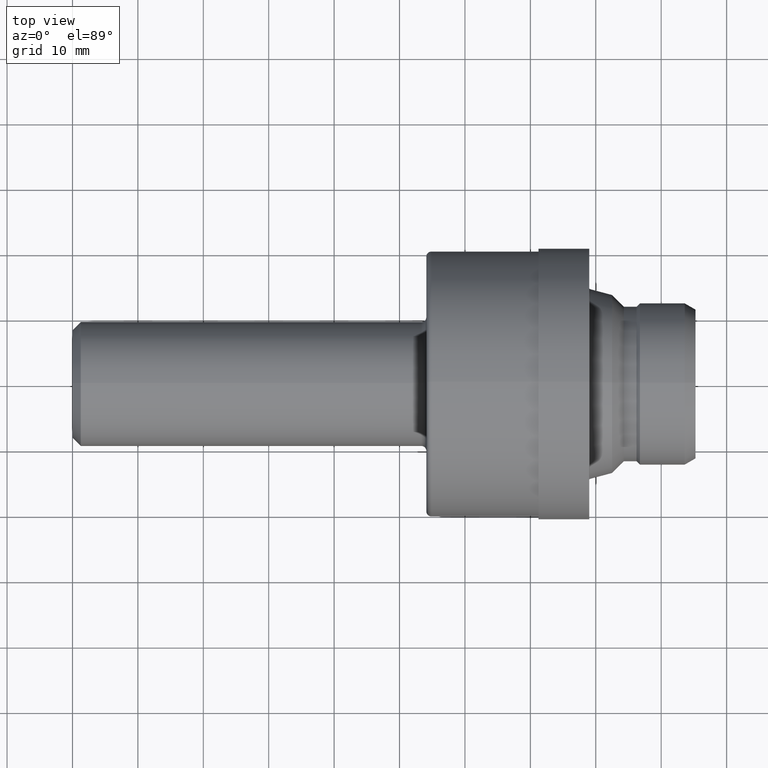
[diagram: clean part render]
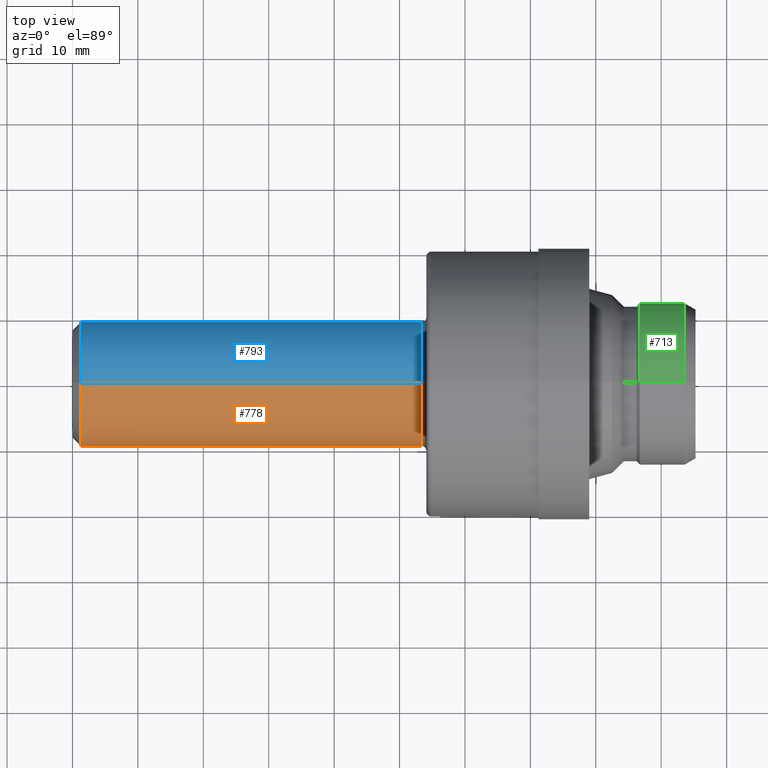
[diagram: same view with three faces highlighted in distinct colors, each labeled with its STEP entity id]
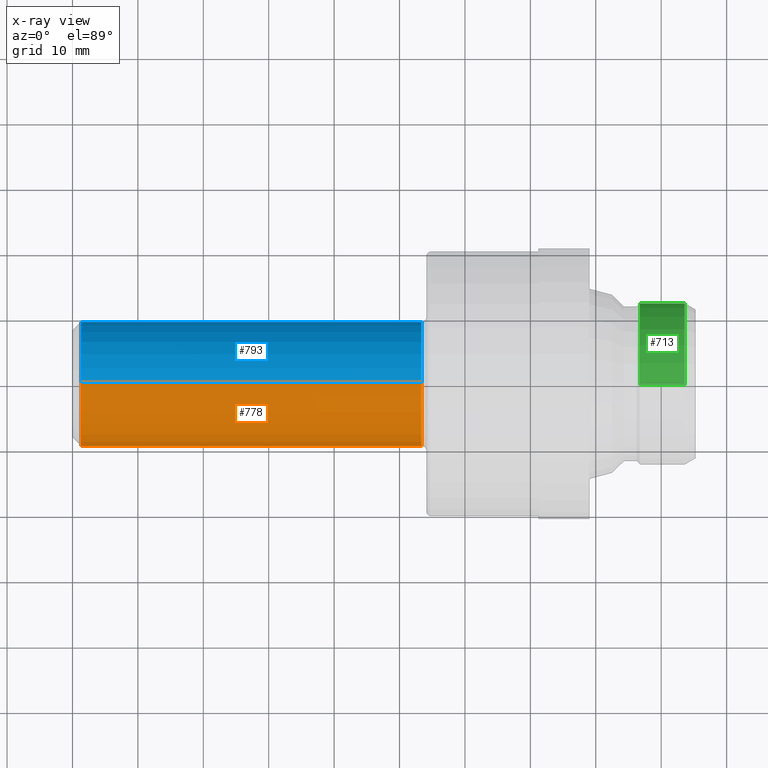
[diagram: x-ray of the same camera — body ghosted, the three highlighted faces saturated]
A machine part, top view with three faces highlighted in distinct colors.
The next image is the same camera in x-ray (body ghosted, the three faces saturated) — at least one of them is partly hidden behind the body in this view.
Their STEP definitions:

[orange] entity #778 — the highlighted cylindrical surface (partial cylindrical patch) has radius 9.525 mm, axis along (-1, -0, -0).
#13 = CARTESIAN_POINT ( 'NONE',  ( 0.05000000000000000278, 4.592425496802575451E-17, -0.3750000000000000555 ) ) ;
#20 = ORIENTED_EDGE ( 'NONE', *, *, #186, .T. ) ;
#24 = EDGE_CURVE ( 'NONE', #101, #27, #511, .T. ) ;
#27 = VERTEX_POINT ( 'NONE', #108 ) ;
#37 = CARTESIAN_POINT ( 'NONE',  ( 2.100000000000000089, 4.776122516674677409E-17, -0.3750000000000000555 ) ) ;
#42 = VERTEX_POINT ( 'NONE', #304 ) ;
#52 = CARTESIAN_POINT ( 'NONE',  ( 0.0000000000000000000, 0.0000000000000000000, 0.3750000000000000555 ) ) ;
#82 = FACE_OUTER_BOUND ( 'NONE', #236, .T. ) ;
#101 = VERTEX_POINT ( 'NONE', #37 ) ;
#108 = CARTESIAN_POINT ( 'NONE',  ( 2.100000000000000089, 0.0000000000000000000, 0.3750000000000000555 ) ) ;
#135 = CARTESIAN_POINT ( 'NONE',  ( 0.05000000000000000278, 0.0000000000000000000, 0.0000000000000000000 ) ) ;
#140 = CARTESIAN_POINT ( 'NONE',  ( 0.0000000000000000000, 0.0000000000000000000, 0.0000000000000000000 ) ) ;
#186 = EDGE_CURVE ( 'NONE', #27, #42, #764, .T. ) ;
#236 = EDGE_LOOP ( 'NONE', ( #792, #568, #20, #770 ) ) ;
#237 = VECTOR ( 'NONE', #443, 39.37007874015748143 ) ;
#245 = VECTOR ( 'NONE', #450, 39.37007874015748143 ) ;
#251 = CIRCLE ( 'NONE', #429, 0.3750000000000000555 ) ;
#256 = DIRECTION ( 'NONE',  ( -1.000000000000000000, -0.0000000000000000000, -0.0000000000000000000 ) ) ;
#271 = DIRECTION ( 'NONE',  ( 0.0000000000000000000, 0.0000000000000000000, 1.000000000000000000 ) ) ;
#304 = CARTESIAN_POINT ( 'NONE',  ( 0.05000000000000000278, 0.0000000000000000000, 0.3750000000000000555 ) ) ;
#326 = CYLINDRICAL_SURFACE ( 'NONE', #397, 0.3750000000000000555 ) ;
#336 = DIRECTION ( 'NONE',  ( 0.0000000000000000000, 0.0000000000000000000, 1.000000000000000000 ) ) ;
#367 = DIRECTION ( 'NONE',  ( -1.000000000000000000, -0.0000000000000000000, -0.0000000000000000000 ) ) ;
#370 = CARTESIAN_POINT ( 'NONE',  ( 0.0000000000000000000, 4.592425496802575451E-17, -0.3750000000000000555 ) ) ;
#397 = AXIS2_PLACEMENT_3D ( 'NONE', #140, #411, #271 ) ;
#411 = DIRECTION ( 'NONE',  ( -1.000000000000000000, -0.0000000000000000000, -0.0000000000000000000 ) ) ;
#429 = AXIS2_PLACEMENT_3D ( 'NONE', #135, #256, #336 ) ;
#443 = DIRECTION ( 'NONE',  ( -1.000000000000000000, -0.0000000000000000000, -0.0000000000000000000 ) ) ;
#450 = DIRECTION ( 'NONE',  ( -1.000000000000000000, -0.0000000000000000000, -0.0000000000000000000 ) ) ;
#508 = AXIS2_PLACEMENT_3D ( 'NONE', #745, #367, #823 ) ;
#511 = CIRCLE ( 'NONE', #508, 0.3750000000000000555 ) ;
#568 = ORIENTED_EDGE ( 'NONE', *, *, #24, .T. ) ;
#581 = EDGE_CURVE ( 'NONE', #101, #642, #584, .T. ) ;
#584 = LINE ( 'NONE', #370, #237 ) ;
#642 = VERTEX_POINT ( 'NONE', #13 ) ;
#692 = EDGE_CURVE ( 'NONE', #642, #42, #251, .T. ) ;
#745 = CARTESIAN_POINT ( 'NONE',  ( 2.100000000000000089, 0.0000000000000000000, 0.0000000000000000000 ) ) ;
#764 = LINE ( 'NONE', #52, #245 ) ;
#770 = ORIENTED_EDGE ( 'NONE', *, *, #692, .F. ) ;
#778 = ADVANCED_FACE ( 'NONE', ( #82 ), #326, .T. ) ;
#792 = ORIENTED_EDGE ( 'NONE', *, *, #581, .F. ) ;
#823 = DIRECTION ( 'NONE',  ( 0.0000000000000000000, 0.0000000000000000000, 1.000000000000000000 ) ) ;

[blue] entity #793 — the highlighted cylindrical surface (partial cylindrical patch) has radius 9.525 mm, axis along (-1, -0, -0).
#13 = CARTESIAN_POINT ( 'NONE',  ( 0.05000000000000000278, 4.592425496802575451E-17, -0.3750000000000000555 ) ) ;
#27 = VERTEX_POINT ( 'NONE', #108 ) ;
#37 = CARTESIAN_POINT ( 'NONE',  ( 2.100000000000000089, 4.776122516674677409E-17, -0.3750000000000000555 ) ) ;
#42 = VERTEX_POINT ( 'NONE', #304 ) ;
#52 = CARTESIAN_POINT ( 'NONE',  ( 0.0000000000000000000, 0.0000000000000000000, 0.3750000000000000555 ) ) ;
#95 = DIRECTION ( 'NONE',  ( 0.0000000000000000000, 0.0000000000000000000, 1.000000000000000000 ) ) ;
#101 = VERTEX_POINT ( 'NONE', #37 ) ;
#108 = CARTESIAN_POINT ( 'NONE',  ( 2.100000000000000089, 0.0000000000000000000, 0.3750000000000000555 ) ) ;
#116 = ORIENTED_EDGE ( 'NONE', *, *, #595, .T. ) ;
#130 = ORIENTED_EDGE ( 'NONE', *, *, #581, .T. ) ;
#159 = DIRECTION ( 'NONE',  ( 0.0000000000000000000, 0.0000000000000000000, 1.000000000000000000 ) ) ;
#181 = AXIS2_PLACEMENT_3D ( 'NONE', #685, #215, #159 ) ;
#186 = EDGE_CURVE ( 'NONE', #27, #42, #764, .T. ) ;
#215 = DIRECTION ( 'NONE',  ( -1.000000000000000000, -0.0000000000000000000, -0.0000000000000000000 ) ) ;
#237 = VECTOR ( 'NONE', #443, 39.37007874015748143 ) ;
#245 = VECTOR ( 'NONE', #450, 39.37007874015748143 ) ;
#265 = ORIENTED_EDGE ( 'NONE', *, *, #556, .F. ) ;
#304 = CARTESIAN_POINT ( 'NONE',  ( 0.05000000000000000278, 0.0000000000000000000, 0.3750000000000000555 ) ) ;
#308 = AXIS2_PLACEMENT_3D ( 'NONE', #415, #538, #475 ) ;
#343 = CIRCLE ( 'NONE', #181, 0.3750000000000000555 ) ;
#370 = CARTESIAN_POINT ( 'NONE',  ( 0.0000000000000000000, 4.592425496802575451E-17, -0.3750000000000000555 ) ) ;
#415 = CARTESIAN_POINT ( 'NONE',  ( 0.0000000000000000000, 0.0000000000000000000, 0.0000000000000000000 ) ) ;
#443 = DIRECTION ( 'NONE',  ( -1.000000000000000000, -0.0000000000000000000, -0.0000000000000000000 ) ) ;
#450 = DIRECTION ( 'NONE',  ( -1.000000000000000000, -0.0000000000000000000, -0.0000000000000000000 ) ) ;
#475 = DIRECTION ( 'NONE',  ( 0.0000000000000000000, 0.0000000000000000000, 1.000000000000000000 ) ) ;
#490 = CARTESIAN_POINT ( 'NONE',  ( 0.05000000000000000278, 0.0000000000000000000, 0.0000000000000000000 ) ) ;
#538 = DIRECTION ( 'NONE',  ( -1.000000000000000000, -0.0000000000000000000, -0.0000000000000000000 ) ) ;
#556 = EDGE_CURVE ( 'NONE', #42, #642, #606, .T. ) ;
#581 = EDGE_CURVE ( 'NONE', #101, #642, #584, .T. ) ;
#584 = LINE ( 'NONE', #370, #237 ) ;
#595 = EDGE_CURVE ( 'NONE', #27, #101, #343, .T. ) ;
#600 = EDGE_LOOP ( 'NONE', ( #116, #130, #265, #624 ) ) ;
#606 = CIRCLE ( 'NONE', #763, 0.3750000000000000555 ) ;
#624 = ORIENTED_EDGE ( 'NONE', *, *, #186, .F. ) ;
#639 = CYLINDRICAL_SURFACE ( 'NONE', #308, 0.3750000000000000555 ) ;
#642 = VERTEX_POINT ( 'NONE', #13 ) ;
#685 = CARTESIAN_POINT ( 'NONE',  ( 2.100000000000000089, 0.0000000000000000000, 0.0000000000000000000 ) ) ;
#763 = AXIS2_PLACEMENT_3D ( 'NONE', #490, #826, #95 ) ;
#764 = LINE ( 'NONE', #52, #245 ) ;
#793 = ADVANCED_FACE ( 'NONE', ( #842 ), #639, .T. ) ;
#826 = DIRECTION ( 'NONE',  ( -1.000000000000000000, -0.0000000000000000000, -0.0000000000000000000 ) ) ;
#842 = FACE_OUTER_BOUND ( 'NONE', #600, .T. ) ;

[green] entity #713 — the highlighted cylindrical surface (partial cylindrical patch) has radius 12.3825 mm, axis along (-1, -0, -0).
#11 = DIRECTION ( 'NONE',  ( 0.0000000000000000000, 0.0000000000000000000, 1.000000000000000000 ) ) ;
#15 = EDGE_CURVE ( 'NONE', #123, #381, #38, .T. ) ;
#38 = CIRCLE ( 'NONE', #622, 0.4874999999999999889 ) ;
#70 = CARTESIAN_POINT ( 'NONE',  ( 0.0000000000000000000, 0.0000000000000000000, 0.0000000000000000000 ) ) ;
#99 = CARTESIAN_POINT ( 'NONE',  ( 3.415000000000000036, 5.970153145843346608E-17, -0.4874999999999999889 ) ) ;
#109 = VERTEX_POINT ( 'NONE', #755 ) ;
#117 = LINE ( 'NONE', #812, #808 ) ;
#123 = VERTEX_POINT ( 'NONE', #633 ) ;
#138 = ORIENTED_EDGE ( 'NONE', *, *, #340, .T. ) ;
#170 = EDGE_LOOP ( 'NONE', ( #261, #138, #787, #472 ) ) ;
#171 = CARTESIAN_POINT ( 'NONE',  ( 3.415000000000000036, 0.0000000000000000000, 0.0000000000000000000 ) ) ;
#197 = EDGE_CURVE ( 'NONE', #231, #109, #268, .T. ) ;
#208 = FACE_OUTER_BOUND ( 'NONE', #170, .T. ) ;
#223 = DIRECTION ( 'NONE',  ( 0.0000000000000000000, 0.0000000000000000000, 1.000000000000000000 ) ) ;
#231 = VERTEX_POINT ( 'NONE', #524 ) ;
#261 = ORIENTED_EDGE ( 'NONE', *, *, #197, .T. ) ;
#268 = CIRCLE ( 'NONE', #687, 0.4874999999999999889 ) ;
#299 = DIRECTION ( 'NONE',  ( -1.000000000000000000, -0.0000000000000000000, -0.0000000000000000000 ) ) ;
#340 = EDGE_CURVE ( 'NONE', #109, #381, #522, .T. ) ;
#345 = VECTOR ( 'NONE', #299, 39.37007874015748143 ) ;
#374 = CYLINDRICAL_SURFACE ( 'NONE', #784, 0.4874999999999999889 ) ;
#381 = VERTEX_POINT ( 'NONE', #99 ) ;
#393 = DIRECTION ( 'NONE',  ( -1.000000000000000000, -0.0000000000000000000, -0.0000000000000000000 ) ) ;
#472 = ORIENTED_EDGE ( 'NONE', *, *, #545, .F. ) ;
#522 = LINE ( 'NONE', #744, #345 ) ;
#524 = CARTESIAN_POINT ( 'NONE',  ( 3.685000000000000053, 0.0000000000000000000, 0.4874999999999999889 ) ) ;
#545 = EDGE_CURVE ( 'NONE', #231, #123, #117, .T. ) ;
#562 = DIRECTION ( 'NONE',  ( -1.000000000000000000, -0.0000000000000000000, -0.0000000000000000000 ) ) ;
#615 = DIRECTION ( 'NONE',  ( -1.000000000000000000, -0.0000000000000000000, -0.0000000000000000000 ) ) ;
#622 = AXIS2_PLACEMENT_3D ( 'NONE', #171, #615, #223 ) ;
#633 = CARTESIAN_POINT ( 'NONE',  ( 3.415000000000000036, 0.0000000000000000000, 0.4874999999999999889 ) ) ;
#687 = AXIS2_PLACEMENT_3D ( 'NONE', #771, #393, #844 ) ;
#713 = ADVANCED_FACE ( 'NONE', ( #208 ), #374, .T. ) ;
#732 = DIRECTION ( 'NONE',  ( -1.000000000000000000, -0.0000000000000000000, -0.0000000000000000000 ) ) ;
#744 = CARTESIAN_POINT ( 'NONE',  ( 0.0000000000000000000, 5.970153145843346608E-17, -0.4874999999999999889 ) ) ;
#755 = CARTESIAN_POINT ( 'NONE',  ( 3.685000000000000053, 5.970153145843346608E-17, -0.4874999999999999889 ) ) ;
#771 = CARTESIAN_POINT ( 'NONE',  ( 3.685000000000000053, 0.0000000000000000000, 0.0000000000000000000 ) ) ;
#784 = AXIS2_PLACEMENT_3D ( 'NONE', #70, #732, #11 ) ;
#787 = ORIENTED_EDGE ( 'NONE', *, *, #15, .F. ) ;
#808 = VECTOR ( 'NONE', #562, 39.37007874015748143 ) ;
#812 = CARTESIAN_POINT ( 'NONE',  ( 0.0000000000000000000, 0.0000000000000000000, 0.4874999999999999889 ) ) ;
#844 = DIRECTION ( 'NONE',  ( 0.0000000000000000000, 0.0000000000000000000, 1.000000000000000000 ) ) ;